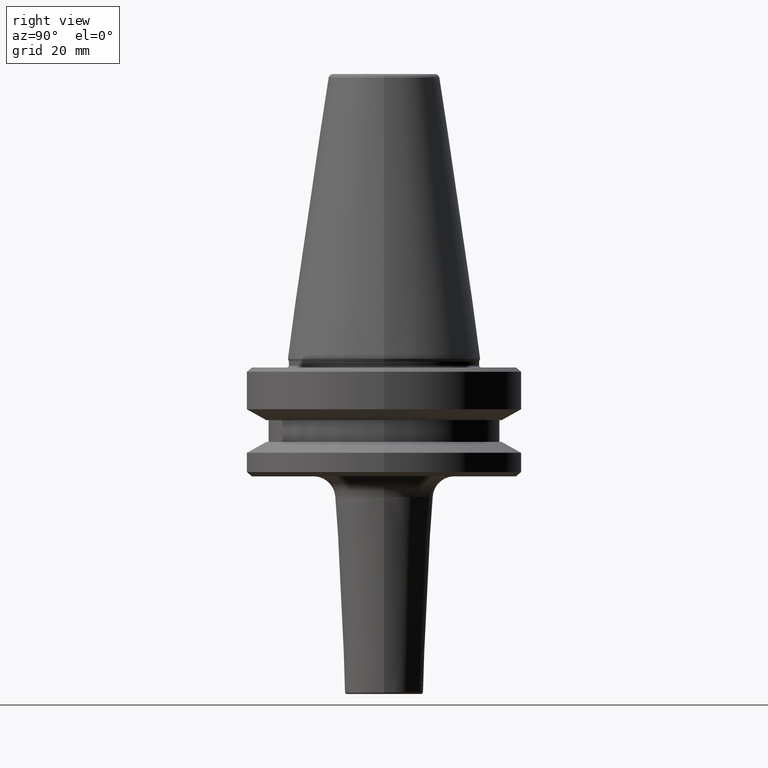
[diagram: clean part render]
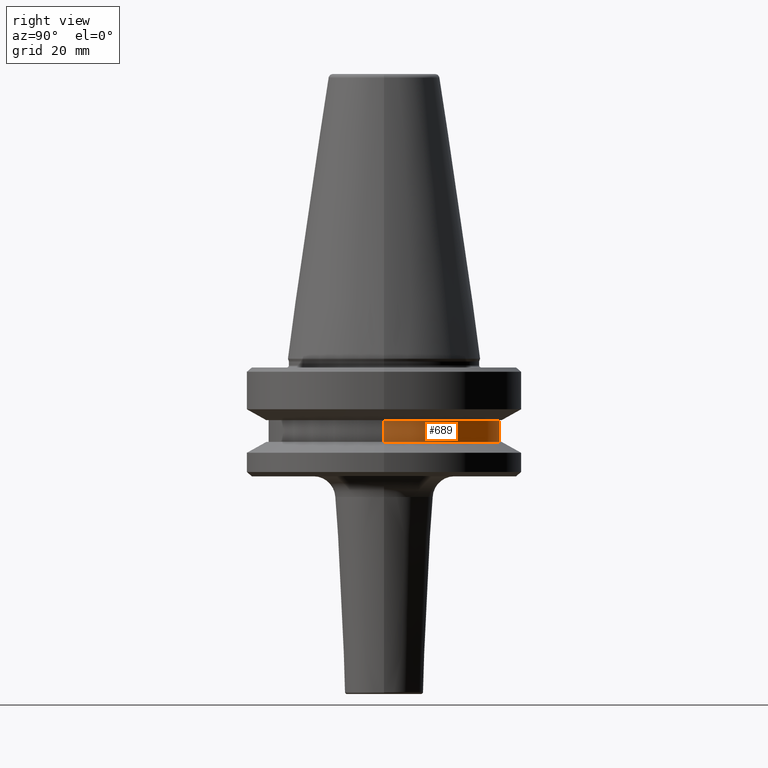
[diagram: same view with one face highlighted and labeled with its STEP entity id]
A machine part, right view. The second image highlights one B-rep face of the part: STEP entity #689.
In plain terms, the highlighted cylindrical surface (partial cylindrical patch) has radius 26.5 mm, axis along (-0, -0, 1).
Its self-contained STEP definition (entity closure, byte-faithful):
#1 = AXIS2_PLACEMENT_3D ( 'NONE', #332, #1044, #74 ) ;
#16 = DIRECTION ( 'NONE',  ( -0.0000000000000000000, -0.0000000000000000000, 1.000000000000000000 ) ) ;
#74 = DIRECTION ( 'NONE',  ( 1.000000000000000000, 0.0000000000000000000, 0.0000000000000000000 ) ) ;
#80 = FACE_OUTER_BOUND ( 'NONE', #412, .T. ) ;
#84 = CARTESIAN_POINT ( 'NONE',  ( -26.50000000000019200, 3.245314017740509400E-015, -84.50000000000068200 ) ) ;
#94 = VECTOR ( 'NONE', #367, 1000.000000000000000 ) ;
#119 = DIRECTION ( 'NONE',  ( -0.0000000000000000000, -0.0000000000000000000, 1.000000000000000000 ) ) ;
#127 = CARTESIAN_POINT ( 'NONE',  ( -26.50000000000019200, 3.245314017740509400E-015, 6.357346922996331500 ) ) ;
#132 = ORIENTED_EDGE ( 'NONE', *, *, #829, .T. ) ;
#204 = CARTESIAN_POINT ( 'NONE',  ( -26.50000000000019200, 3.245314017740509400E-015, -79.50000000000012800 ) ) ;
#211 = CARTESIAN_POINT ( 'NONE',  ( 26.50000000000019200, 0.0000000000000000000, -84.50000000000068200 ) ) ;
#223 = CARTESIAN_POINT ( 'NONE',  ( 0.0000000000000000000, 0.0000000000000000000, -79.50000000000012800 ) ) ;
#224 = EDGE_CURVE ( 'NONE', #1050, #448, #579, .T. ) ;
#246 = ORIENTED_EDGE ( 'NONE', *, *, #224, .F. ) ;
#263 = ORIENTED_EDGE ( 'NONE', *, *, #1052, .F. ) ;
#310 = LINE ( 'NONE', #676, #94 ) ;
#332 = CARTESIAN_POINT ( 'NONE',  ( 0.0000000000000000000, 0.0000000000000000000, -84.50000000000068200 ) ) ;
#367 = DIRECTION ( 'NONE',  ( -0.0000000000000000000, -0.0000000000000000000, 1.000000000000000000 ) ) ;
#376 = CIRCLE ( 'NONE', #1, 26.50000000000019200 ) ;
#379 = EDGE_CURVE ( 'NONE', #727, #547, #376, .T. ) ;
#412 = EDGE_LOOP ( 'NONE', ( #1013, #132, #246, #263 ) ) ;
#419 = VECTOR ( 'NONE', #16, 1000.000000000000000 ) ;
#446 = CARTESIAN_POINT ( 'NONE',  ( 0.0000000000000000000, 0.0000000000000000000, 6.357346922996331500 ) ) ;
#448 = VERTEX_POINT ( 'NONE', #204 ) ;
#515 = AXIS2_PLACEMENT_3D ( 'NONE', #223, #119, #601 ) ;
#547 = VERTEX_POINT ( 'NONE', #84 ) ;
#551 = AXIS2_PLACEMENT_3D ( 'NONE', #446, #617, #805 ) ;
#579 = CIRCLE ( 'NONE', #515, 26.50000000000019200 ) ;
#601 = DIRECTION ( 'NONE',  ( 1.000000000000000000, 0.0000000000000000000, 0.0000000000000000000 ) ) ;
#617 = DIRECTION ( 'NONE',  ( -0.0000000000000000000, -0.0000000000000000000, 1.000000000000000000 ) ) ;
#676 = CARTESIAN_POINT ( 'NONE',  ( 26.50000000000019200, 0.0000000000000000000, 6.357346922996331500 ) ) ;
#689 = ADVANCED_FACE ( 'NONE', ( #80 ), #856, .T. ) ;
#727 = VERTEX_POINT ( 'NONE', #211 ) ;
#750 = CARTESIAN_POINT ( 'NONE',  ( 26.50000000000019200, 0.0000000000000000000, -79.50000000000012800 ) ) ;
#805 = DIRECTION ( 'NONE',  ( 1.000000000000000000, 0.0000000000000000000, 0.0000000000000000000 ) ) ;
#829 = EDGE_CURVE ( 'NONE', #547, #448, #842, .T. ) ;
#842 = LINE ( 'NONE', #127, #419 ) ;
#856 = CYLINDRICAL_SURFACE ( 'NONE', #551, 26.50000000000019200 ) ;
#1013 = ORIENTED_EDGE ( 'NONE', *, *, #379, .T. ) ;
#1044 = DIRECTION ( 'NONE',  ( -0.0000000000000000000, -0.0000000000000000000, 1.000000000000000000 ) ) ;
#1050 = VERTEX_POINT ( 'NONE', #750 ) ;
#1052 = EDGE_CURVE ( 'NONE', #727, #1050, #310, .T. ) ;